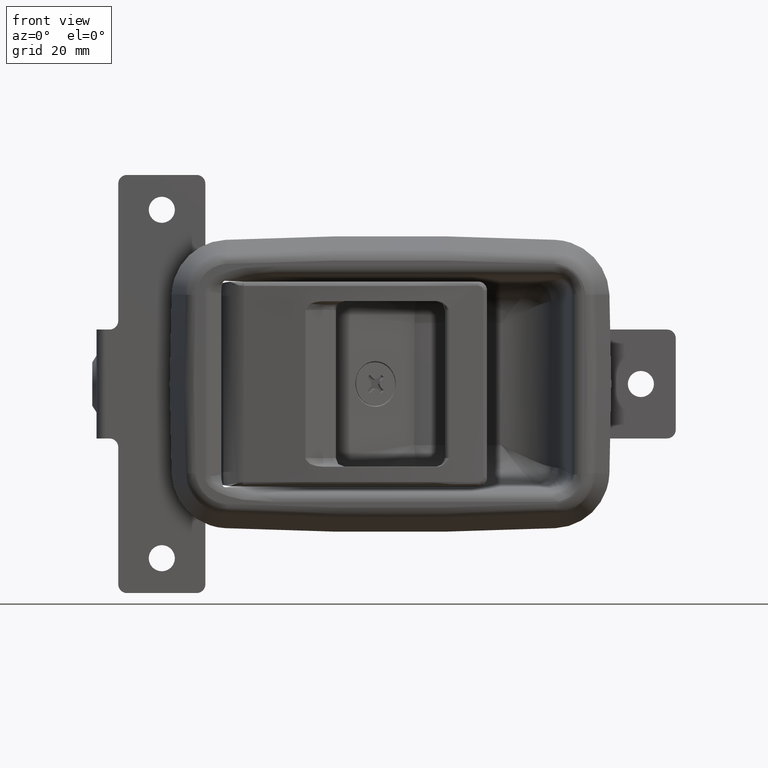
[diagram: clean part render]
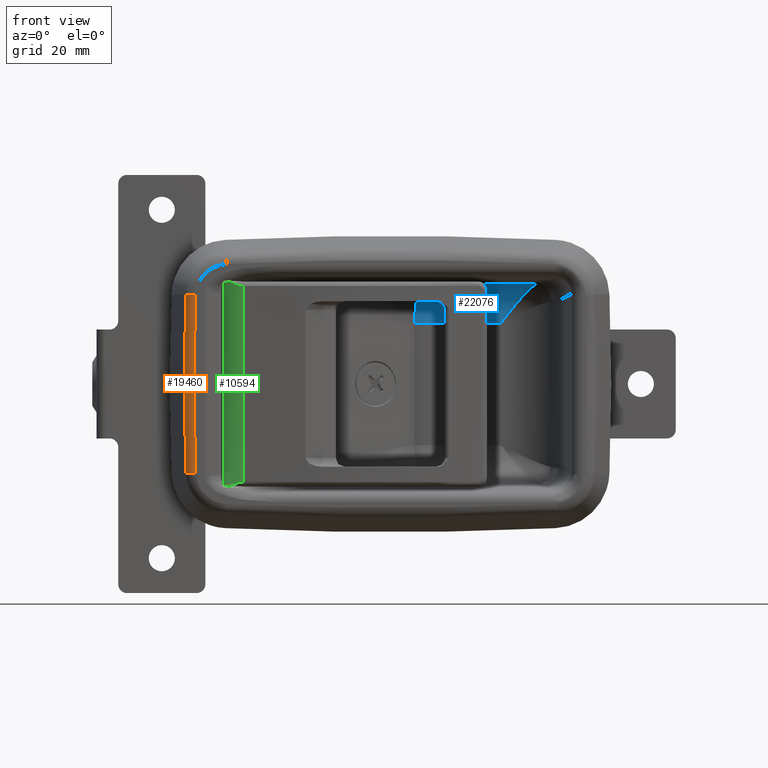
[diagram: same view with three faces highlighted in distinct colors, each labeled with its STEP entity id]
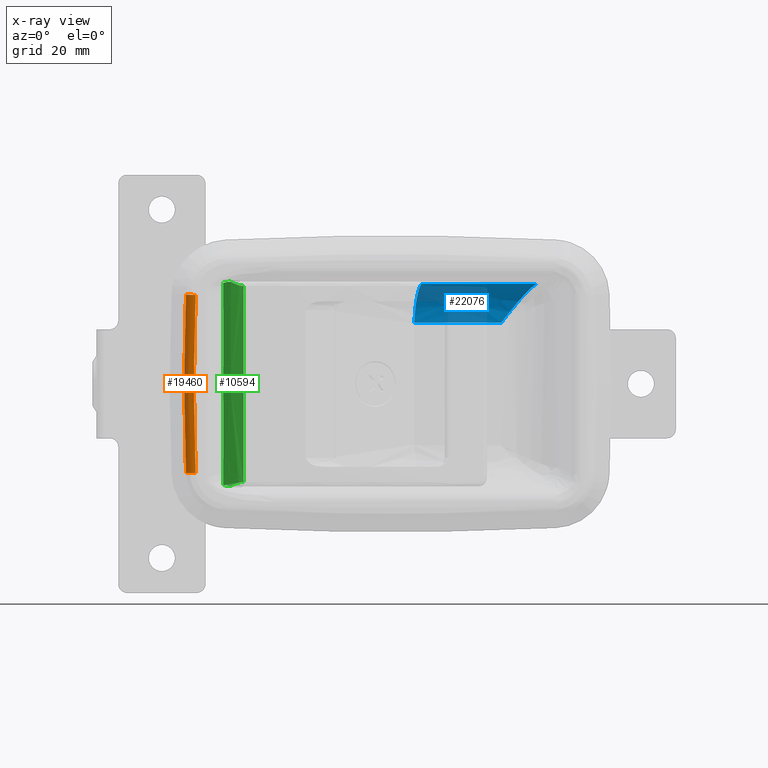
[diagram: x-ray of the same camera — body ghosted, the three highlighted faces saturated]
A machine part, front view with three faces highlighted in distinct colors.
The next image is the same camera in x-ray (body ghosted, the three faces saturated) — at least one of them is partly hidden behind the body in this view.
Their STEP definitions:

[orange] entity #19460 — the highlighted face is a freeform B-spline surface patch.
#19295=CARTESIAN_POINT('',(-44.732906281337343,-8.000000000000091,-20.424262696262499));
#19296=VERTEX_POINT('',#19295);
#19297=CARTESIAN_POINT('',(-46.967065813362701,-6.618033988750020,-20.516627112898000));
#19298=VERTEX_POINT('',#19297);
#19299=CARTESIAN_POINT('',(-44.732906281337343,-8.000000000000091,-20.424262696262499));
#19300=CARTESIAN_POINT('',(-45.107498139043557,-8.000581840448801,-20.439749038181020));
#19301=CARTESIAN_POINT('',(-45.755171027055759,-7.851305274623876,-20.466525070784940));
#19302=CARTESIAN_POINT('',(-46.518687711171928,-7.312258385346588,-20.498090306887899));
#19303=CARTESIAN_POINT('',(-46.844804824236427,-6.863105290836004,-20.511572610398890));
#19304=CARTESIAN_POINT('',(-46.967065813362701,-6.618033988750020,-20.516627112898000));
#19305=B_SPLINE_CURVE_WITH_KNOTS('',3,(#19299,#19300,#19301,#19302,#19303,#19304),.UNSPECIFIED.,.F.,.U.,(4,1,1,4),(0.000000123948990,1.124486329375011,1.946177785341657,2.767906303908730),.UNSPECIFIED.);
#19306=EDGE_CURVE('',#19296,#19298,#19305,.T.);
#19400=CARTESIAN_POINT('',(-44.514532870685748,-7.996616461293543,-22.456736140855313));
#19401=CARTESIAN_POINT('',(-45.535776426019872,-7.996616461293544,-0.000003957630793));
#19402=CARTESIAN_POINT('',(-44.514533229897658,-7.996616461293542,22.456728241929270));
#19403=CARTESIAN_POINT('',(-46.241727801631335,-8.086661900154386,-22.535282150027193));
#19404=CARTESIAN_POINT('',(-47.266543318855256,-8.086661900154388,-0.000003971473230));
#19405=CARTESIAN_POINT('',(-46.241728162099669,-8.086661900154388,22.535274223473404));
#19406=CARTESIAN_POINT('',(-46.933421117128347,-6.499825142313963,-22.566737632283285));
#19407=CARTESIAN_POINT('',(-47.959667105295701,-6.499825142313962,-0.000003977016748));
#19408=CARTESIAN_POINT('',(-46.933421478099817,-6.499825142313959,22.566729694665337));
#19416=(BOUNDED_SURFACE()B_SPLINE_SURFACE(2,2,((#19400,#19403,#19406),(#19401,#19404,#19407),(#19402,#19405,#19408)),.UNSPECIFIED.,.F.,.F.,.U.)B_SPLINE_SURFACE_WITH_KNOTS((3,3),(3,3),(153.819223387909010,198.990697876739490),(0.588058781555295,3.712671864101291),.UNSPECIFIED.)GEOMETRIC_REPRESENTATION_ITEM()RATIONAL_B_SPLINE_SURFACE(((0.898044644653236,0.737011341375486,0.894939747955345),(0.897117472419295,0.736250425472371,0.894015781323736),(0.898044644326776,0.737011341107565,0.894939747630014)))REPRESENTATION_ITEM('')SURFACE());
#19417=CARTESIAN_POINT('',(-44.732906281337343,-8.000000000000091,20.424262696262950));
#19418=VERTEX_POINT('',#19417);
#19419=CARTESIAN_POINT('',(-46.967065813362701,-6.618033988749980,20.516627112898551));
#19420=VERTEX_POINT('',#19419);
#19421=CARTESIAN_POINT('',(-44.732906281337343,-8.000000000000091,20.424262696262950));
#19422=CARTESIAN_POINT('',(-44.963373008559032,-8.000080950857781,20.433790630373569));
#19423=CARTESIAN_POINT('',(-45.366623823402513,-7.943707717952329,20.450461788246070));
#19424=CARTESIAN_POINT('',(-46.012115377716540,-7.685420062447286,20.477147640354119));
#19425=CARTESIAN_POINT('',(-46.567576126250408,-7.256264458740738,20.500111447220640));
#19426=CARTESIAN_POINT('',(-46.864047882559902,-6.824353223615201,20.512368155135999));
#19427=CARTESIAN_POINT('',(-46.967065813362701,-6.618033988749980,20.516627112898551));
#19428=B_SPLINE_CURVE_WITH_KNOTS('',3,(#19421,#19422,#19423,#19424,#19425,#19426,#19427),.UNSPECIFIED.,.F.,.U.,(4,1,1,1,4),(0.000000123955203,0.691976668943012,1.210982648876020,2.075929758920041,2.767906303908707),.UNSPECIFIED.);
#19429=EDGE_CURVE('',#19418,#19420,#19428,.T.);
#19430=ORIENTED_EDGE('',*,*,#19429,.T.);
#19431=CARTESIAN_POINT('',(-46.967065813362701,-6.618033988750020,-20.516627112898000));
#19432=CARTESIAN_POINT('',(-47.815262312962680,-6.618033988749831,3.816392E-013));
#19433=CARTESIAN_POINT('',(-46.967065813362701,-6.618033988749980,20.516627112898551));
#19441=(BOUNDED_CURVE()B_SPLINE_CURVE(2,(#19431,#19432,#19433),.UNSPECIFIED.,.F.,.U.)CURVE()GEOMETRIC_REPRESENTATION_ITEM()QUASI_UNIFORM_CURVE()RATIONAL_B_SPLINE_CURVE((1.0,0.999146517237544,1.0))REPRESENTATION_ITEM(''));
#19442=EDGE_CURVE('',#19298,#19420,#19441,.T.);
#19443=ORIENTED_EDGE('',*,*,#19442,.F.);
#19444=ORIENTED_EDGE('',*,*,#19306,.F.);
#19445=CARTESIAN_POINT('',(-44.732906281337343,-8.000000000000091,20.424262696262950));
#19446=CARTESIAN_POINT('',(-45.577284259771581,-8.000000000000091,4.996004E-013));
#19447=CARTESIAN_POINT('',(-44.732906281337343,-8.000000000000091,-20.424262696262499));
#19455=(BOUNDED_CURVE()B_SPLINE_CURVE(2,(#19445,#19446,#19447),.UNSPECIFIED.,.F.,.U.)CURVE()GEOMETRIC_REPRESENTATION_ITEM()QUASI_UNIFORM_CURVE()RATIONAL_B_SPLINE_CURVE((1.0,0.999146517237544,1.0))REPRESENTATION_ITEM(''));
#19456=EDGE_CURVE('',#19418,#19296,#19455,.T.);
#19457=ORIENTED_EDGE('',*,*,#19456,.F.);
#19458=EDGE_LOOP('',(#19430,#19443,#19444,#19457));
#19459=FACE_OUTER_BOUND('',#19458,.T.);
#19460=ADVANCED_FACE('',(#19459),#19416,.T.);

[blue] entity #22076 — the highlighted face is a freeform B-spline surface patch.
#21392=CARTESIAN_POINT('',(25.398614827220651,15.500000000000000,14.034196293153400));
#21393=VERTEX_POINT('',#21392);
#21394=CARTESIAN_POINT('',(33.678588235229050,7.593176446246370,22.967558776416350));
#21395=VERTEX_POINT('',#21394);
#21396=CARTESIAN_POINT('',(25.398614827220651,15.500000000000000,14.034196293153400));
#21397=CARTESIAN_POINT('',(25.423380535057071,15.500000000000011,14.065717886922430));
#21398=CARTESIAN_POINT('',(25.448699897366659,15.499831096670780,14.097944181763101));
#21399=CARTESIAN_POINT('',(25.498970511029729,15.499150430002180,14.161926869352699));
#21400=CARTESIAN_POINT('',(25.524104986529998,15.498639514233940,14.193916474535831));
#21401=CARTESIAN_POINT('',(25.599505884723548,15.496594991837361,14.289877983425630));
#21402=CARTESIAN_POINT('',(25.649766708314871,15.494549715449590,14.353838672993660));
#21403=CARTESIAN_POINT('',(25.800527446174058,15.486366777971661,14.545660339293590));
#21404=CARTESIAN_POINT('',(25.900992705142809,15.478182585210890,14.673444481805291));
#21405=CARTESIAN_POINT('',(26.202160076326180,15.445446986690451,15.056243908788840));
#21406=CARTESIAN_POINT('',(26.402675149462389,15.412701466927199,15.310758865120970));
#21407=CARTESIAN_POINT('',(26.802267767013749,15.325477705869810,15.816555039845460));
#21408=CARTESIAN_POINT('',(27.001232240435382,15.271047127655310,16.067695060114740));
#21409=CARTESIAN_POINT('',(27.298680785409740,15.173022005199330,16.441536222416431));
#21410=CARTESIAN_POINT('',(27.397757243555159,15.137577089895521,16.565788026274632));
#21411=CARTESIAN_POINT('',(27.595150100654941,15.061342999567280,16.812703217898409));
#21412=CARTESIAN_POINT('',(27.693386067680681,15.020591085122540,16.935266601698810));
#21413=CARTESIAN_POINT('',(28.182381079023632,14.803699870700729,17.543536752159770));
#21414=CARTESIAN_POINT('',(28.566610902668330,14.588409429552030,18.015700174708741));
#21415=CARTESIAN_POINT('',(29.134398442746569,14.200750247434980,18.699722061098189));
#21416=CARTESIAN_POINT('',(29.322229570887121,14.060696210864521,18.923673688859189));
#21417=CARTESIAN_POINT('',(29.602036641904409,13.833620185191050,19.252988689712520));
#21418=CARTESIAN_POINT('',(29.694679983157819,13.755328387452250,19.361298350739649));
#21419=CARTESIAN_POINT('',(29.877998623225221,13.594207096718810,19.574054776054808));
#21420=CARTESIAN_POINT('',(29.968793949668271,13.511280806137361,19.678643007880389));
#21421=CARTESIAN_POINT('',(30.418586834204081,13.084848811532749,20.192537161901551));
#21422=CARTESIAN_POINT('',(30.765090668545689,12.706177492487560,20.574907491872139));
#21423=CARTESIAN_POINT('',(31.266711524796179,12.079651189121110,21.101153072493808));
#21424=CARTESIAN_POINT('',(31.430884519812420,11.861010589665550,21.268644282347260));
#21425=CARTESIAN_POINT('',(31.672735749126868,11.517591760018551,21.507026479402001));
#21426=CARTESIAN_POINT('',(31.752617559271989,11.400538746581860,21.584341177859439));
#21427=CARTESIAN_POINT('',(31.910928107977739,11.161094654174731,21.734466704744580));
#21428=CARTESIAN_POINT('',(31.989437054057301,11.038574303365410,21.807350362738529));
#21429=CARTESIAN_POINT('',(32.377537516615313,10.413444956045851,22.159111241805441));
#21430=CARTESIAN_POINT('',(32.665696665656370,9.886797037241731,22.392971663373931));
#21431=CARTESIAN_POINT('',(33.067800776620238,9.057226926143718,22.668168172510210));
#21432=CARTESIAN_POINT('',(33.196789427459841,8.774069685380081,22.747232588290920));
#21433=CARTESIAN_POINT('',(33.444984275576019,8.194074829133529,22.878318911460141));
#21434=CARTESIAN_POINT('',(33.564190180305701,7.897240252033582,22.930350458578090));
#21435=CARTESIAN_POINT('',(33.678588235229050,7.593176446246370,22.967558776416350));
#21436=B_SPLINE_CURVE_WITH_KNOTS('',3,(#21396,#21397,#21398,#21399,#21400,#21401,#21402,#21403,#21404,#21405,#21406,#21407,#21408,#21409,#21410,#21411,#21412,#21413,#21414,#21415,#21416,#21417,#21418,#21419,#21420,#21421,#21422,#21423,#21424,#21425,#21426,#21427,#21428,#21429,#21430,#21431,#21432,#21433,#21434,#21435),.UNSPECIFIED.,.F.,.U.,(4,2,2,2,2,2,2,2,2,2,2,2,2,2,2,2,2,2,2,4),(0.0,0.007812500000000,0.015625000000000,0.031250000000000,0.062499999999999,0.124999999999998,0.187499999999997,0.218749999999997,0.249999999999996,0.374999999999995,0.437499999999995,0.468749999999995,0.499999999999994,0.624999999999996,0.687499999999996,0.718749999999997,0.749999999999998,0.874999999999999,0.937499999999999,1.0),.UNSPECIFIED.);
#21437=EDGE_CURVE('',#21393,#21395,#21436,.T.);
#22002=CARTESIAN_POINT('',(4.797043709775486,7.206131861550599,23.006452296751551));
#22003=CARTESIAN_POINT('',(34.400626848365391,7.206131861550604,23.006452296751551));
#22004=CARTESIAN_POINT('',(4.797043709775484,16.065002522860041,22.309244055167973));
#22005=CARTESIAN_POINT('',(34.400626848365398,16.065002522860052,22.309244055167959));
#22006=CARTESIAN_POINT('',(4.797043709775482,15.480510449339171,13.442223262256032));
#22007=CARTESIAN_POINT('',(34.400626848365391,15.480510449339182,13.442223262256032));
#22015=(BOUNDED_SURFACE()B_SPLINE_SURFACE(1,2,((#22002,#22004,#22006),(#22003,#22005,#22007)),.UNSPECIFIED.,.F.,.F.,.U.)B_SPLINE_SURFACE_WITH_KNOTS((2,2),(3,3),(0.0,1.0),(0.0,0.991030861394573),.UNSPECIFIED.)GEOMETRIC_REPRESENTATION_ITEM()RATIONAL_B_SPLINE_SURFACE(((1.0,0.709733781062675,0.994793124099756),(1.0,0.709733781062675,0.994793124099756)))REPRESENTATION_ITEM('')SURFACE());
#22016=CARTESIAN_POINT('',(5.501471625030450,15.500000000000000,14.034196293153400));
#22017=VERTEX_POINT('',#22016);
#22018=CARTESIAN_POINT('',(25.398614827220651,15.500000000000000,14.034196293153400));
#22019=CARTESIAN_POINT('',(5.501471625030450,15.500000000000000,14.034196293153400));
#22020=QUASI_UNIFORM_CURVE('',1,(#22018,#22019),.UNSPECIFIED.,.F.,.U.);
#22021=EDGE_CURVE('',#21393,#22017,#22020,.T.);
#22022=ORIENTED_EDGE('',*,*,#22021,.F.);
#22023=ORIENTED_EDGE('',*,*,#21437,.T.);
#22024=CARTESIAN_POINT('',(7.128778771444950,7.593176446246370,22.967558776416400));
#22025=VERTEX_POINT('',#22024);
#22026=CARTESIAN_POINT('',(7.128778771444950,7.593176446246370,22.967558776416400));
#22027=CARTESIAN_POINT('',(33.678588235229050,7.593176446246370,22.967558776416350));
#22028=QUASI_UNIFORM_CURVE('',1,(#22026,#22027),.UNSPECIFIED.,.F.,.U.);
#22029=EDGE_CURVE('',#22025,#21395,#22028,.T.);
#22030=ORIENTED_EDGE('',*,*,#22029,.F.);
#22031=CARTESIAN_POINT('',(5.501471625030450,15.500000000000000,14.034196293153400));
#22032=CARTESIAN_POINT('',(5.517185099514740,15.500000000000011,14.586949549122910));
#22033=CARTESIAN_POINT('',(5.543846373384726,15.449518845328940,15.130575595567430));
#22034=CARTESIAN_POINT('',(5.598006134427640,15.301608454944370,15.933057106974839));
#22035=CARTESIAN_POINT('',(5.618442037756534,15.240193786181541,16.198376672971669));
#22036=CARTESIAN_POINT('',(5.652552693735544,15.129651444942940,16.593059707424239));
#22037=CARTESIAN_POINT('',(5.664500051610184,15.089729203817271,16.724070477935928));
#22038=CARTESIAN_POINT('',(5.683281014202600,15.025157132016680,16.919748858199299));
#22039=CARTESIAN_POINT('',(5.689692109519033,15.002824775869851,16.984906017528729));
#22040=CARTESIAN_POINT('',(5.702738292853309,14.956802244274380,17.114328246155541));
#22041=CARTESIAN_POINT('',(5.709378245386269,14.933095993399339,17.178647650755419));
#22042=CARTESIAN_POINT('',(5.770163768165095,14.713553122373950,17.754037291853582));
#22043=CARTESIAN_POINT('',(5.831421940385710,14.474773257574681,18.240918220086400));
#22044=CARTESIAN_POINT('',(5.932716786905572,14.053106239896509,18.935621147101809));
#22045=CARTESIAN_POINT('',(5.968062408952694,13.901900928062689,19.161214542984109));
#22046=CARTESIAN_POINT('',(6.023372196664766,13.658757800001190,19.490458762248931));
#22047=CARTESIAN_POINT('',(6.042234277399365,13.574786216736751,19.598907535920649));
#22048=CARTESIAN_POINT('',(6.080365782843463,13.402873603538410,19.810782416590090));
#22049=CARTESIAN_POINT('',(6.099661694402635,13.314820938307880,19.914383284744812));
#22050=CARTESIAN_POINT('',(6.197219340692677,12.864262541111550,20.420924559197729));
#22051=CARTESIAN_POINT('',(6.278687826266843,12.471123324554791,20.789756312244400));
#22052=CARTESIAN_POINT('',(6.405013708742023,11.832827594003430,21.289120557732669));
#22053=CARTESIAN_POINT('',(6.447835263910042,11.611808805062619,21.446609260078102));
#22054=CARTESIAN_POINT('',(6.534663956312942,11.153368803759010,21.742673057596001));
#22055=CARTESIAN_POINT('',(6.578055581550609,10.919198193641970,21.879162974095411));
#22056=CARTESIAN_POINT('',(6.707929247909506,10.202289974415571,22.255163909222560));
#22057=CARTESIAN_POINT('',(6.794117963641929,9.705271226696667,22.461471829775391));
#22058=CARTESIAN_POINT('',(6.900553664435599,9.059847596660527,22.663534409127220));
#22059=CARTESIAN_POINT('',(6.921775209655849,8.929546074196182,22.701134377643530));
#22060=CARTESIAN_POINT('',(6.964063595408943,8.666463365306811,22.770611254326610));
#22061=CARTESIAN_POINT('',(6.985157838426228,8.533502824214612,22.802519352422038));
#22062=CARTESIAN_POINT('',(7.026905069465192,8.266722608012971,22.860141808174831));
#22063=CARTESIAN_POINT('',(7.047583746784659,8.132747775338173,22.885905589416780));
#22064=CARTESIAN_POINT('',(7.078292690700976,7.930905986964328,22.919980656242899));
#22065=CARTESIAN_POINT('',(7.093569860448048,7.829765120917452,22.935875089237751));
#22066=CARTESIAN_POINT('',(7.111253910817776,7.711381028952610,22.952413525473428));
#22067=CARTESIAN_POINT('',(7.118802476907144,7.660561969350849,22.959070964302740));
#22068=CARTESIAN_POINT('',(7.123828066263106,7.626664121561665,22.963413500591699));
#22069=CARTESIAN_POINT('',(7.126305479615067,7.609906050514929,22.965511573095672));
#22070=CARTESIAN_POINT('',(7.128778771444950,7.593176446246370,22.967558776416400));
#22071=B_SPLINE_CURVE_WITH_KNOTS('',3,(#22031,#22032,#22033,#22034,#22035,#22036,#22037,#22038,#22039,#22040,#22041,#22042,#22043,#22044,#22045,#22046,#22047,#22048,#22049,#22050,#22051,#22052,#22053,#22054,#22055,#22056,#22057,#22058,#22059,#22060,#22061,#22062,#22063,#22064,#22065,#22066,#22067,#22068,#22069,#22070),.UNSPECIFIED.,.F.,.U.,(4,2,2,2,2,2,2,2,2,2,2,2,2,2,2,2,2,1,1,2,4),(0.0,0.125000000000000,0.187500000000000,0.218750000000000,0.234375000000000,0.250000000000001,0.375000000000002,0.437500000000003,0.468750000000003,0.500000000000003,0.625000000000002,0.687500000000002,0.750000000000002,0.875000000000001,0.906250000000001,0.937500000000001,0.968750000000000,0.984375000000000,0.992187500000000,0.996093750000000,1.0),.UNSPECIFIED.);
#22072=EDGE_CURVE('',#22017,#22025,#22071,.T.);
#22073=ORIENTED_EDGE('',*,*,#22072,.F.);
#22074=EDGE_LOOP('',(#22022,#22023,#22030,#22073));
#22075=FACE_OUTER_BOUND('',#22074,.T.);
#22076=ADVANCED_FACE('',(#22075),#22015,.F.);

[green] entity #10594 — the highlighted face is a freeform B-spline surface patch.
#4865=CARTESIAN_POINT('',(-33.717662976264712,-6.814212279362660,-22.500000000000000));
#4866=VERTEX_POINT('',#4865);
#4877=CARTESIAN_POINT('',(-36.810290039480449,-5.500000000000000,-23.500000000000000));
#4878=VERTEX_POINT('',#4877);
#4879=CARTESIAN_POINT('',(-36.810290039480492,-5.500000000000101,-23.500000000000082));
#4880=CARTESIAN_POINT('',(-36.712890856404599,-5.570933064637986,-23.447043975153431));
#4881=CARTESIAN_POINT('',(-36.526948492034222,-5.706349618804850,-23.345946941721749));
#4882=CARTESIAN_POINT('',(-36.248191917144403,-5.883564758558464,-23.205161904494162));
#4883=CARTESIAN_POINT('',(-35.989841603063397,-6.033156774162354,-23.081585178819381));
#4884=CARTESIAN_POINT('',(-35.753473550315213,-6.157293197764299,-22.975450362919162));
#4885=CARTESIAN_POINT('',(-35.541362385557392,-6.259219361440112,-22.886520911802240));
#4886=CARTESIAN_POINT('',(-35.268994401130108,-6.379705368491550,-22.782402869268410));
#4887=CARTESIAN_POINT('',(-34.928513459103897,-6.511755966964118,-22.673265288854179));
#4888=CARTESIAN_POINT('',(-34.511736501467503,-6.642819757077386,-22.574900208086749));
#4889=CARTESIAN_POINT('',(-34.110307943424807,-6.744524526840661,-22.512359619827659));
#4890=CARTESIAN_POINT('',(-33.845588418806813,-6.791507705697503,-22.504026818037580));
#4891=CARTESIAN_POINT('',(-33.717662976264691,-6.814212279362667,-22.500000000000082));
#4892=B_SPLINE_CURVE_WITH_KNOTS('',3,(#4879,#4880,#4881,#4882,#4883,#4884,#4885,#4886,#4887,#4888,#4889,#4890,#4891),.UNSPECIFIED.,.F.,.U.,(4,1,1,1,1,1,1,1,1,1,4),(0.0,0.110796857117505,0.211519531546611,0.302178075705550,0.382786504757865,0.453365024125840,0.513944086135672,0.648398272377118,0.773741982661828,0.890661041952031,1.0),.UNSPECIFIED.);
#4893=EDGE_CURVE('',#4878,#4866,#4892,.T.);
#5137=CARTESIAN_POINT('',(-36.810290039480449,-5.500000000000000,23.500000000000000));
#5138=VERTEX_POINT('',#5137);
#5148=CARTESIAN_POINT('',(-33.717662976264712,-6.814212279362660,22.500000000000000));
#5149=VERTEX_POINT('',#5148);
#5150=CARTESIAN_POINT('',(-33.717662976264698,-6.814212279362668,22.499999999999972));
#5151=CARTESIAN_POINT('',(-33.802089589798477,-6.799711820299293,22.501750196367901));
#5152=CARTESIAN_POINT('',(-33.974727478776998,-6.770060878053231,22.505329046609670));
#5153=CARTESIAN_POINT('',(-34.236146886486353,-6.712302278181844,22.532861555703128));
#5154=CARTESIAN_POINT('',(-34.505244765298677,-6.642524481491087,22.576356855993780));
#5155=CARTESIAN_POINT('',(-34.781160030170241,-6.558715092404736,22.637566709203170));
#5156=CARTESIAN_POINT('',(-35.063042012540357,-6.460059518855053,22.716119696313431));
#5157=CARTESIAN_POINT('',(-35.388275358965643,-6.330202339727896,22.824187032912789));
#5158=CARTESIAN_POINT('',(-35.785639587174053,-6.145613313955889,22.986279645738001));
#5159=CARTESIAN_POINT('',(-36.282247217631671,-5.874039332473676,23.217051182663209));
#5160=CARTESIAN_POINT('',(-36.622350054572287,-5.633127359357103,23.399293401482300));
#5161=CARTESIAN_POINT('',(-36.810290039480513,-5.500000000000083,23.499999999999961));
#5162=B_SPLINE_CURVE_WITH_KNOTS('',3,(#5150,#5151,#5152,#5153,#5154,#5155,#5156,#5157,#5158,#5159,#5160,#5161),.UNSPECIFIED.,.F.,.U.,(4,1,1,1,1,1,1,1,1,4),(0.0,0.072109112941890,0.147450720967513,0.226301429590855,0.308902593237208,0.395464194615613,0.486168709291104,0.617272303477499,0.788505623312540,1.0),.UNSPECIFIED.);
#5163=EDGE_CURVE('',#5149,#5138,#5162,.T.);
#8478=CARTESIAN_POINT('',(-38.354278698342952,-3.898079681251360,23.208741760227500));
#8479=VERTEX_POINT('',#8478);
#8485=CARTESIAN_POINT('',(-38.354278698342952,-3.898079681251360,23.208741760227500));
#8486=CARTESIAN_POINT('',(-37.930814878301838,-4.508509550287513,23.319729009143170));
#8487=CARTESIAN_POINT('',(-37.407328166984442,-5.051512276758022,23.418456777592379));
#8488=CARTESIAN_POINT('',(-36.810290039480449,-5.500000000000000,23.500000000000000));
#8489=B_SPLINE_CURVE_WITH_KNOTS('',3,(#8485,#8486,#8487,#8488),.UNSPECIFIED.,.F.,.U.,(4,4),(5.540138E-009,2.253414380563001),.UNSPECIFIED.);
#8490=EDGE_CURVE('',#8479,#5138,#8489,.T.);
#8547=CARTESIAN_POINT('',(-38.354278698342952,-3.898079681251340,-23.208741760227550));
#8548=VERTEX_POINT('',#8547);
#8549=CARTESIAN_POINT('',(-36.810290039480449,-5.500000000000000,-23.500000000000000));
#8550=CARTESIAN_POINT('',(-37.407308890786510,-5.051474323777136,-23.418449877050382));
#8551=CARTESIAN_POINT('',(-37.930635968877219,-4.508364730031730,-23.319702678187539));
#8552=CARTESIAN_POINT('',(-38.354278698342952,-3.898079681251340,-23.208741760227550));
#8553=B_SPLINE_CURVE_WITH_KNOTS('',3,(#8549,#8550,#8551,#8552),.UNSPECIFIED.,.F.,.U.,(4,4),(5.515865E-009,2.253392369010175),.UNSPECIFIED.);
#8554=EDGE_CURVE('',#4878,#8548,#8553,.T.);
#10539=CARTESIAN_POINT('',(-38.354278698342952,-3.898079681251340,-23.208741760227550));
#10540=CARTESIAN_POINT('',(-38.354278698342952,-3.898079681251360,23.208741760227500));
#10541=QUASI_UNIFORM_CURVE('',1,(#10539,#10540),.UNSPECIFIED.,.F.,.U.);
#10542=EDGE_CURVE('',#8548,#8479,#10541,.T.);
#10568=CARTESIAN_POINT('',(-33.536367687084919,-6.840936248315767,-24.675000000000001));
#10569=CARTESIAN_POINT('',(-33.536367687084919,-6.840936248315767,24.704374999999999));
#10570=CARTESIAN_POINT('',(-36.757005835740578,-6.409189233083927,-24.674999999999997));
#10571=CARTESIAN_POINT('',(-36.757005835740578,-6.409189233083927,24.704375000000002));
#10572=CARTESIAN_POINT('',(-38.505923966746330,-3.670539759205060,-24.674999999999997));
#10573=CARTESIAN_POINT('',(-38.505923966746330,-3.670539759205060,24.704374999999999));
#10581=(BOUNDED_SURFACE()B_SPLINE_SURFACE(1,2,((#10568,#10570,#10572),(#10569,#10571,#10573)),.UNSPECIFIED.,.F.,.F.,.U.)B_SPLINE_SURFACE_WITH_KNOTS((2,2),(3,3),(0.0,1.0),(0.0,0.975774676578958),.UNSPECIFIED.)GEOMETRIC_REPRESENTATION_ITEM()RATIONAL_B_SPLINE_SURFACE(((1.0,0.904945187342454,0.995394532841289),(1.0,0.904945187342454,0.995394532841289)))REPRESENTATION_ITEM('')SURFACE());
#10582=ORIENTED_EDGE('',*,*,#8554,.F.);
#10583=ORIENTED_EDGE('',*,*,#4893,.T.);
#10584=CARTESIAN_POINT('',(-33.717662976264712,-6.814212279362660,-22.500000000000000));
#10585=CARTESIAN_POINT('',(-33.717662976264712,-6.814212279362660,22.500000000000000));
#10586=QUASI_UNIFORM_CURVE('',1,(#10584,#10585),.UNSPECIFIED.,.F.,.U.);
#10587=EDGE_CURVE('',#4866,#5149,#10586,.T.);
#10588=ORIENTED_EDGE('',*,*,#10587,.T.);
#10589=ORIENTED_EDGE('',*,*,#5163,.T.);
#10590=ORIENTED_EDGE('',*,*,#8490,.F.);
#10591=ORIENTED_EDGE('',*,*,#10542,.F.);
#10592=EDGE_LOOP('',(#10582,#10583,#10588,#10589,#10590,#10591));
#10593=FACE_OUTER_BOUND('',#10592,.T.);
#10594=ADVANCED_FACE('',(#10593),#10581,.T.);